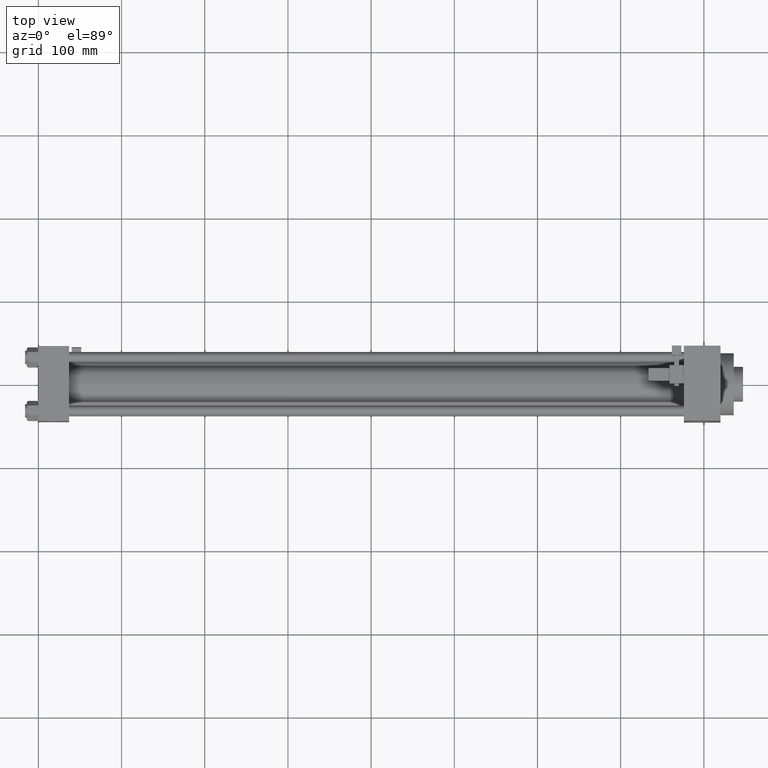
[diagram: clean part render]
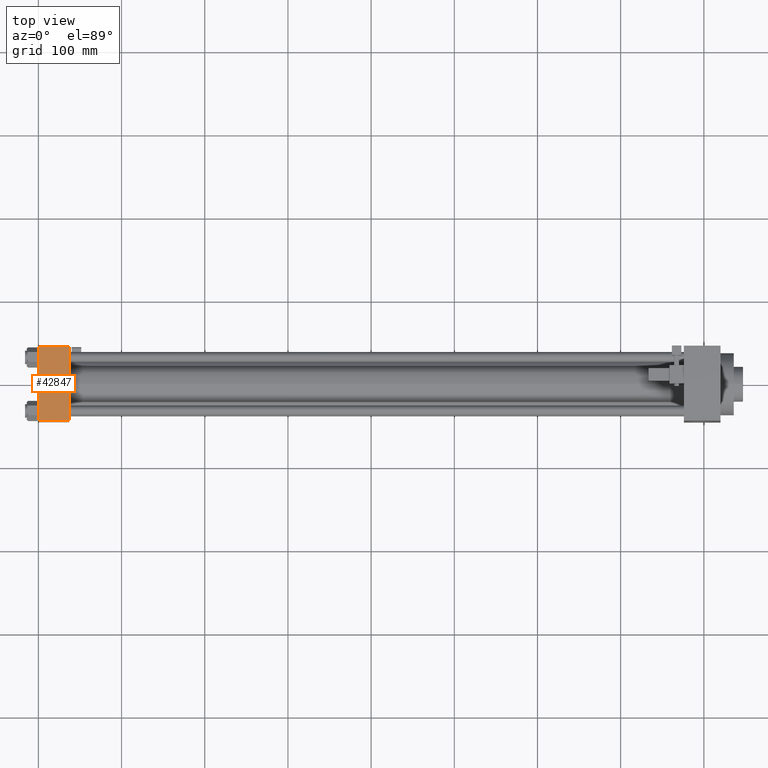
[diagram: same view with one face highlighted and labeled with its STEP entity id]
A machine part, top view. The second image highlights one B-rep face of the part: STEP entity #42847.
In plain terms, the highlighted planar face has unit normal (0, 0, -1).
Its self-contained STEP definition (entity closure, byte-faithful):
#95 = DIRECTION ( 'NONE',  ( 0.000000000000000000, 1.000000000000000000, 1.541976423090495633E-16 ) ) ;
#1716 = DIRECTION ( 'NONE',  ( -1.000000000000000000, 0.000000000000000000, 0.000000000000000000 ) ) ;
#2716 = LINE ( 'NONE', #34702, #20948 ) ;
#3016 = ORIENTED_EDGE ( 'NONE', *, *, #41101, .F. ) ;
#5536 = ORIENTED_EDGE ( 'NONE', *, *, #42746, .T. ) ;
#5925 = VERTEX_POINT ( 'NONE', #9134 ) ;
#8497 = LINE ( 'NONE', #15293, #11265 ) ;
#9134 = CARTESIAN_POINT ( 'NONE',  ( 37.00000000000000000, -44.49999999999995737, 45.00000000000000000 ) ) ;
#10090 = CARTESIAN_POINT ( 'NONE',  ( 0.000000000000000000, 44.49999999999998579, 45.00000000000001421 ) ) ;
#10567 = DIRECTION ( 'NONE',  ( 0.000000000000000000, -1.000000000000000000, -1.541976423090495387E-16 ) ) ;
#11265 = VECTOR ( 'NONE', #20008, 1000.000000000000000 ) ;
#12141 = VERTEX_POINT ( 'NONE', #30772 ) ;
#14778 = PLANE ( 'NONE',  #34463 ) ;
#15293 = CARTESIAN_POINT ( 'NONE',  ( 37.00000000000000000, -44.49999999999998579, 45.00000000000000000 ) ) ;
#15407 = EDGE_CURVE ( 'NONE', #38004, #5925, #8497, .T. ) ;
#16801 = EDGE_CURVE ( 'NONE', #19965, #38004, #40235, .T. ) ;
#18228 = ORIENTED_EDGE ( 'NONE', *, *, #15407, .T. ) ;
#19965 = VERTEX_POINT ( 'NONE', #30012 ) ;
#20008 = DIRECTION ( 'NONE',  ( 1.000000000000000000, 0.000000000000000000, 0.000000000000000000 ) ) ;
#20280 = CARTESIAN_POINT ( 'NONE',  ( 0.000000000000000000, 44.99999999999998579, 45.00000000000001421 ) ) ;
#20948 = VECTOR ( 'NONE', #10567, 1000.000000000000000 ) ;
#22652 = FACE_OUTER_BOUND ( 'NONE', #29684, .T. ) ;
#23157 = CARTESIAN_POINT ( 'NONE',  ( 37.00000000000000000, 44.99999999999998579, 45.00000000000001421 ) ) ;
#24995 = ORIENTED_EDGE ( 'NONE', *, *, #16801, .T. ) ;
#27367 = DIRECTION ( 'NONE',  ( 0.000000000000000000, 1.541976423090495633E-16, -1.000000000000000000 ) ) ;
#29684 = EDGE_LOOP ( 'NONE', ( #24995, #18228, #3016, #5536 ) ) ;
#30012 = CARTESIAN_POINT ( 'NONE',  ( 0.000000000000000000, 44.49999999999998579, 45.00000000000001421 ) ) ;
#30772 = CARTESIAN_POINT ( 'NONE',  ( 37.00000000000000000, 44.49999999999998579, 45.00000000000001421 ) ) ;
#33161 = VECTOR ( 'NONE', #36300, 1000.000000000000000 ) ;
#34463 = AXIS2_PLACEMENT_3D ( 'NONE', #23157, #27367, #95 ) ;
#34702 = CARTESIAN_POINT ( 'NONE',  ( 37.00000000000000000, 44.99999999999998579, 45.00000000000001421 ) ) ;
#35270 = VECTOR ( 'NONE', #1716, 1000.000000000000000 ) ;
#36300 = DIRECTION ( 'NONE',  ( 0.000000000000000000, -1.000000000000000000, -1.541976423090495387E-16 ) ) ;
#38004 = VERTEX_POINT ( 'NONE', #49273 ) ;
#40235 = LINE ( 'NONE', #20280, #33161 ) ;
#41101 = EDGE_CURVE ( 'NONE', #12141, #5925, #2716, .T. ) ;
#42746 = EDGE_CURVE ( 'NONE', #12141, #19965, #50247, .T. ) ;
#42847 = ADVANCED_FACE ( 'NONE', ( #22652 ), #14778, .F. ) ;
#49273 = CARTESIAN_POINT ( 'NONE',  ( 0.000000000000000000, -44.49999999999995737, 45.00000000000000000 ) ) ;
#50247 = LINE ( 'NONE', #10090, #35270 ) ;